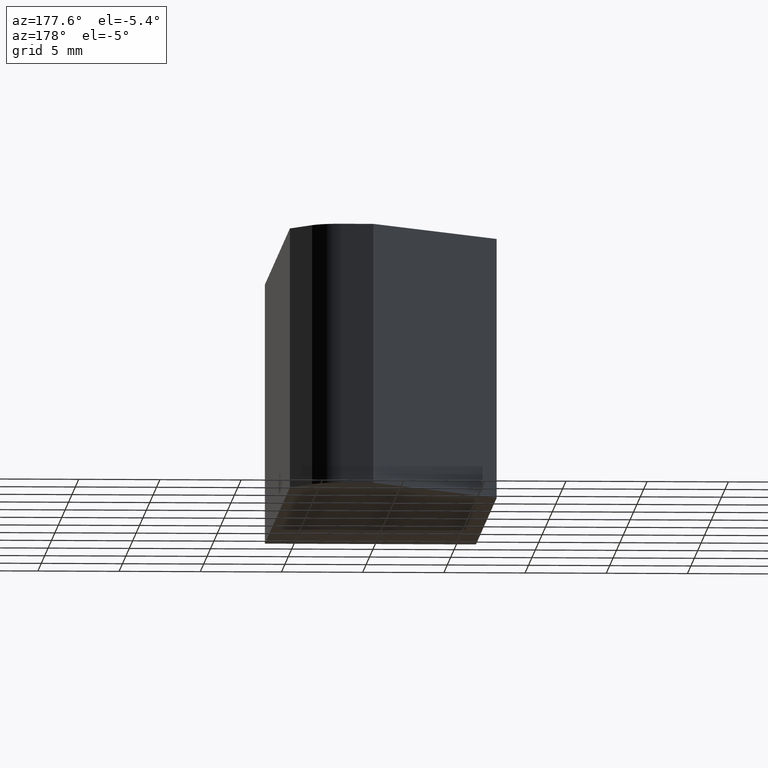
[diagram: clean part render]
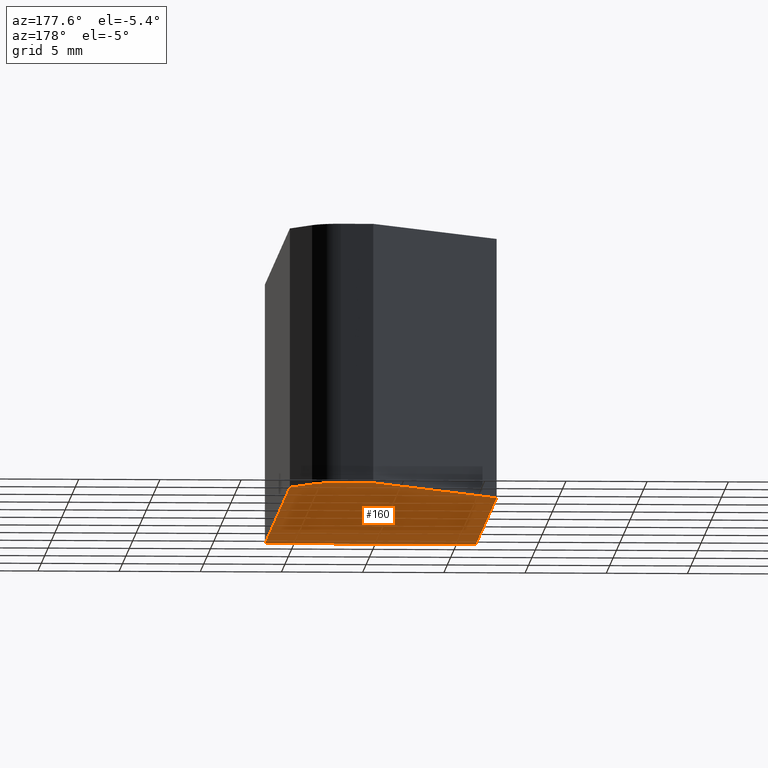
[diagram: same view with one face highlighted and labeled with its STEP entity id]
A machine part, auxiliary view. The second image highlights one B-rep face of the part: STEP entity #160.
In plain terms, the highlighted planar face has unit normal (0, 0, 1).
Its self-contained STEP definition (entity closure, byte-faithful):
#17=FACE_OUTER_BOUND('',#26,.T.);
#26=EDGE_LOOP('',(#110,#111,#112,#113,#114,#115,#116));
#35=CIRCLE('',#193,2.00000000000001);
#37=LINE('',#250,#56);
#38=LINE('',#252,#57);
#39=LINE('',#254,#58);
#40=LINE('',#256,#59);
#41=LINE('',#260,#60);
#42=LINE('',#261,#61);
#56=VECTOR('',#207,10.);
#57=VECTOR('',#208,10.);
#58=VECTOR('',#209,10.);
#59=VECTOR('',#210,10.);
#60=VECTOR('',#213,10.);
#61=VECTOR('',#214,10.);
#75=VERTEX_POINT('',#248);
#76=VERTEX_POINT('',#249);
#77=VERTEX_POINT('',#251);
#78=VERTEX_POINT('',#253);
#79=VERTEX_POINT('',#255);
#80=VERTEX_POINT('',#257);
#81=VERTEX_POINT('',#259);
#89=EDGE_CURVE('',#75,#76,#37,.T.);
#90=EDGE_CURVE('',#77,#75,#38,.T.);
#91=EDGE_CURVE('',#78,#77,#39,.T.);
#92=EDGE_CURVE('',#79,#78,#40,.T.);
#93=EDGE_CURVE('',#80,#79,#35,.T.);
#94=EDGE_CURVE('',#81,#80,#41,.T.);
#95=EDGE_CURVE('',#76,#81,#42,.T.);
#110=ORIENTED_EDGE('',*,*,#89,.F.);
#111=ORIENTED_EDGE('',*,*,#90,.F.);
#112=ORIENTED_EDGE('',*,*,#91,.F.);
#113=ORIENTED_EDGE('',*,*,#92,.F.);
#114=ORIENTED_EDGE('',*,*,#93,.F.);
#115=ORIENTED_EDGE('',*,*,#94,.F.);
#116=ORIENTED_EDGE('',*,*,#95,.F.);
#152=PLANE('',#192);
#160=ADVANCED_FACE('',(#17),#152,.F.);
#192=AXIS2_PLACEMENT_3D('',#247,#205,#206);
#193=AXIS2_PLACEMENT_3D('',#258,#211,#212);
#205=DIRECTION('center_axis',(0.,0.,1.));
#206=DIRECTION('ref_axis',(1.,0.,0.));
#207=DIRECTION('',(1.,-3.00545187904787E-15,0.));
#208=DIRECTION('',(2.18619565072233E-16,-1.,0.));
#209=DIRECTION('',(-0.642787609686539,-0.766044443118978,0.));
#210=DIRECTION('',(-1.,0.,0.));
#211=DIRECTION('center_axis',(0.,0.,1.));
#212=DIRECTION('ref_axis',(-0.866025403784439,-0.5,0.));
#213=DIRECTION('',(-0.499999999999999,0.866025403784439,0.));
#214=DIRECTION('',(1.50853749567614E-16,1.,0.));
#247=CARTESIAN_POINT('Origin',(0.394768987886831,4.85101726977802,-8.));
#248=CARTESIAN_POINT('',(-6.5,-13.6599409950749,-8.));
#249=CARTESIAN_POINT('',(6.5,-13.6599409950749,-8.));
#250=CARTESIAN_POINT('',(6.5,-13.6599409950749,-8.));
#251=CARTESIAN_POINT('',(-6.5,16.8100590049251,-8.));
#252=CARTESIAN_POINT('',(-6.5,-13.6599409950749,-8.));
#253=CARTESIAN_POINT('',(1.49661948511947,26.3400590049251,-8.));
#254=CARTESIAN_POINT('',(-6.5,16.8100590049251,-8.));
#255=CARTESIAN_POINT('',(3.49661948511947,26.3400590049251,-8.));
#256=CARTESIAN_POINT('',(1.49661948511947,26.3400590049251,-8.));
#257=CARTESIAN_POINT('',(5.22867029268835,25.3400590049251,-8.));
#258=CARTESIAN_POINT('Origin',(3.49661948511947,24.3400590049251,-8.));
#259=CARTESIAN_POINT('',(6.5,23.1380513586897,-8.));
#260=CARTESIAN_POINT('',(5.22867029268835,25.3400590049251,-8.));
#261=CARTESIAN_POINT('',(6.5,23.1380513586897,-8.));